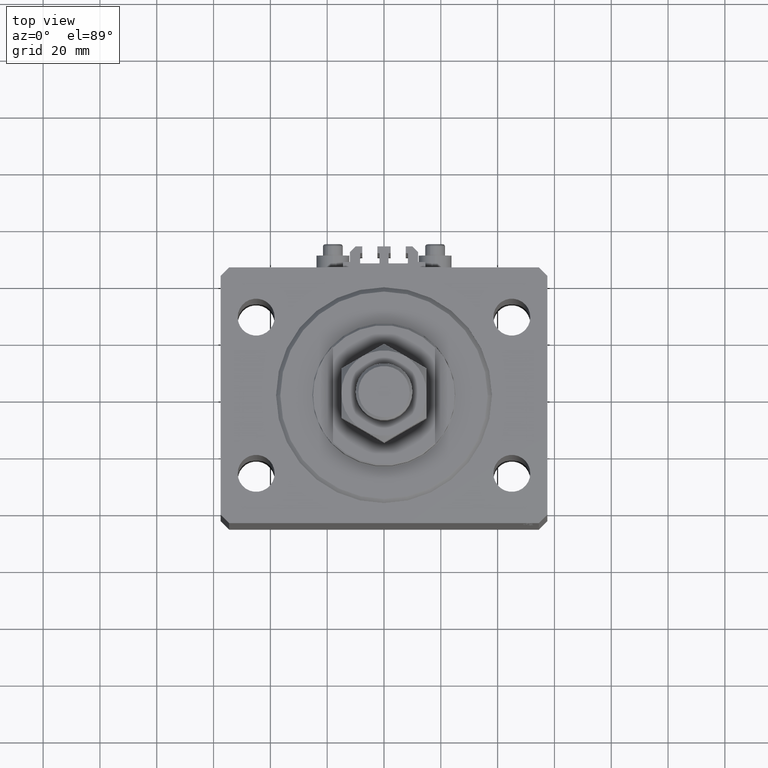
[diagram: clean part render]
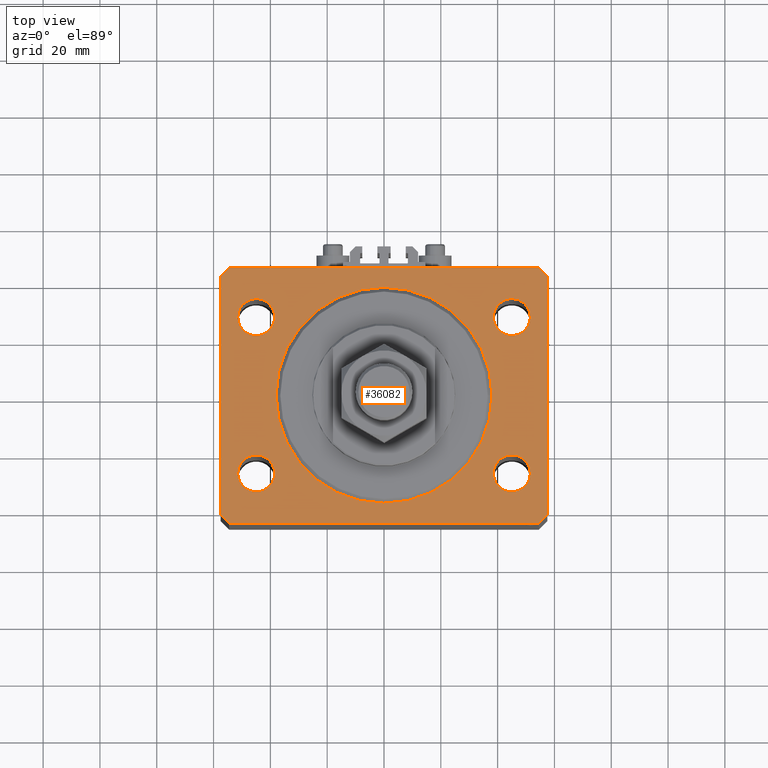
[diagram: same view with one face highlighted and labeled with its STEP entity id]
A machine part, top view. The second image highlights one B-rep face of the part: STEP entity #36082.
In plain terms, the highlighted planar face has unit normal (0, 0, 1).
Its self-contained STEP definition (entity closure, byte-faithful):
#294 = ORIENTED_EDGE ( 'NONE', *, *, #29644, .F. ) ;
#375 = DIRECTION ( 'NONE',  ( 0.000000000000000000, 0.000000000000000000, 1.000000000000000000 ) ) ;
#491 = DIRECTION ( 'NONE',  ( 0.000000000000000000, 0.000000000000000000, 1.000000000000000000 ) ) ;
#844 = FACE_BOUND ( 'NONE', #33536, .T. ) ;
#1034 = DIRECTION ( 'NONE',  ( -0.7071067811865369146, 0.7071067811865581199, 0.000000000000000000 ) ) ;
#1200 = AXIS2_PLACEMENT_3D ( 'NONE', #19736, #31136, #12305 ) ;
#1409 = AXIS2_PLACEMENT_3D ( 'NONE', #45824, #12414, #4514 ) ;
#1538 = ORIENTED_EDGE ( 'NONE', *, *, #47266, .F. ) ;
#2113 = ORIENTED_EDGE ( 'NONE', *, *, #37866, .F. ) ;
#2115 = AXIS2_PLACEMENT_3D ( 'NONE', #38949, #31062, #8780 ) ;
#2724 = VERTEX_POINT ( 'NONE', #45018 ) ;
#2745 = CARTESIAN_POINT ( 'NONE',  ( -44.99999999999998579, -27.50000000000000355, 0.000000000000000000 ) ) ;
#2760 = EDGE_CURVE ( 'NONE', #21957, #29262, #25051, .T. ) ;
#3078 = CARTESIAN_POINT ( 'NONE',  ( 54.50000000000059686, 45.00000000000002842, 0.000000000000000000 ) ) ;
#3464 = ORIENTED_EDGE ( 'NONE', *, *, #20918, .T. ) ;
#3721 = AXIS2_PLACEMENT_3D ( 'NONE', #9372, #38823, #16541 ) ;
#3882 = EDGE_CURVE ( 'NONE', #12818, #14894, #23705, .T. ) ;
#4233 = LINE ( 'NONE', #38868, #16277 ) ;
#4503 = EDGE_CURVE ( 'NONE', #13032, #11188, #44037, .T. ) ;
#4514 = DIRECTION ( 'NONE',  ( 1.000000000000000000, 0.000000000000000000, 0.000000000000000000 ) ) ;
#4580 = AXIS2_PLACEMENT_3D ( 'NONE', #22386, #6831, #21896 ) ;
#4654 = CARTESIAN_POINT ( 'NONE',  ( -45.00000000000000000, 27.49999999999999645, 0.000000000000000000 ) ) ;
#5240 = EDGE_CURVE ( 'NONE', #21312, #18673, #14841, .T. ) ;
#5655 = VERTEX_POINT ( 'NONE', #45108 ) ;
#5964 = VERTEX_POINT ( 'NONE', #39093 ) ;
#6179 = CIRCLE ( 'NONE', #4580, 6.499999999999999112 ) ;
#6587 = EDGE_CURVE ( 'NONE', #2724, #5655, #22864, .T. ) ;
#6831 = DIRECTION ( 'NONE',  ( 0.000000000000000000, 0.000000000000000000, 1.000000000000000000 ) ) ;
#7028 = VECTOR ( 'NONE', #26820, 1000.000000000000000 ) ;
#7212 = VERTEX_POINT ( 'NONE', #42557 ) ;
#7328 = ORIENTED_EDGE ( 'NONE', *, *, #46201, .T. ) ;
#7810 = FACE_BOUND ( 'NONE', #14256, .T. ) ;
#8531 = FACE_BOUND ( 'NONE', #21408, .T. ) ;
#8780 = DIRECTION ( 'NONE',  ( 1.000000000000000000, 0.000000000000000000, -0.000000000000000000 ) ) ;
#8844 = DIRECTION ( 'NONE',  ( 0.000000000000000000, 0.000000000000000000, 1.000000000000000000 ) ) ;
#9113 = VECTOR ( 'NONE', #1034, 1000.000000000000000 ) ;
#9372 = CARTESIAN_POINT ( 'NONE',  ( 44.99999999999998579, -27.50000000000000355, 0.000000000000000000 ) ) ;
#9490 = CARTESIAN_POINT ( 'NONE',  ( 38.49999999999998579, -27.50000000000000355, 0.000000000000000000 ) ) ;
#10303 = LINE ( 'NONE', #33801, #40290 ) ;
#10989 = CARTESIAN_POINT ( 'NONE',  ( -38.49999999999998579, -27.50000000000000355, 0.000000000000000000 ) ) ;
#11188 = VERTEX_POINT ( 'NONE', #34659 ) ;
#11431 = EDGE_CURVE ( 'NONE', #41669, #33326, #37158, .T. ) ;
#11894 = DIRECTION ( 'NONE',  ( 1.000000000000000000, 0.000000000000000000, 0.000000000000000000 ) ) ;
#12239 = CARTESIAN_POINT ( 'NONE',  ( -51.49999999999998579, -27.50000000000000355, 0.000000000000000000 ) ) ;
#12305 = DIRECTION ( 'NONE',  ( 1.000000000000000000, 0.000000000000000000, 0.000000000000000000 ) ) ;
#12414 = DIRECTION ( 'NONE',  ( 0.000000000000000000, 0.000000000000000000, 1.000000000000000000 ) ) ;
#12784 = ORIENTED_EDGE ( 'NONE', *, *, #14827, .T. ) ;
#12818 = VERTEX_POINT ( 'NONE', #38826 ) ;
#13032 = VERTEX_POINT ( 'NONE', #15213 ) ;
#14062 = VECTOR ( 'NONE', #23757, 1000.000000000000000 ) ;
#14256 = EDGE_LOOP ( 'NONE', ( #40149, #25828 ) ) ;
#14574 = CARTESIAN_POINT ( 'NONE',  ( 0.000000000000000000, 0.000000000000000000, 0.000000000000000000 ) ) ;
#14803 = VECTOR ( 'NONE', #20467, 1000.000000000000114 ) ;
#14827 = EDGE_CURVE ( 'NONE', #17445, #2724, #10303, .T. ) ;
#14841 = CIRCLE ( 'NONE', #18012, 38.00000000000000000 ) ;
#14894 = VERTEX_POINT ( 'NONE', #45396 ) ;
#14964 = VERTEX_POINT ( 'NONE', #12239 ) ;
#15213 = CARTESIAN_POINT ( 'NONE',  ( 38.50000000000000000, 27.49999999999999289, 0.000000000000000000 ) ) ;
#15456 = FACE_BOUND ( 'NONE', #43446, .T. ) ;
#15843 = CARTESIAN_POINT ( 'NONE',  ( 45.00000000000000000, 27.49999999999999289, 0.000000000000000000 ) ) ;
#15952 = FACE_OUTER_BOUND ( 'NONE', #24819, .T. ) ;
#16041 = CARTESIAN_POINT ( 'NONE',  ( 38.00000000000000000, 0.000000000000000000, 0.000000000000000000 ) ) ;
#16277 = VECTOR ( 'NONE', #42805, 1000.000000000000000 ) ;
#16534 = CIRCLE ( 'NONE', #48130, 6.499999999999999112 ) ;
#16541 = DIRECTION ( 'NONE',  ( 1.000000000000000000, 0.000000000000000000, 0.000000000000000000 ) ) ;
#17135 = DIRECTION ( 'NONE',  ( 0.000000000000000000, 0.000000000000000000, 1.000000000000000000 ) ) ;
#17175 = CIRCLE ( 'NONE', #3721, 6.499999999999999112 ) ;
#17445 = VERTEX_POINT ( 'NONE', #3078 ) ;
#18012 = AXIS2_PLACEMENT_3D ( 'NONE', #26627, #375, #18952 ) ;
#18673 = VERTEX_POINT ( 'NONE', #48864 ) ;
#18769 = LINE ( 'NONE', #30175, #20606 ) ;
#18952 = DIRECTION ( 'NONE',  ( 1.000000000000000000, 0.000000000000000000, 0.000000000000000000 ) ) ;
#19000 = AXIS2_PLACEMENT_3D ( 'NONE', #4654, #23460, #19005 ) ;
#19005 = DIRECTION ( 'NONE',  ( 1.000000000000000000, 0.000000000000000000, 0.000000000000000000 ) ) ;
#19358 = CARTESIAN_POINT ( 'NONE',  ( 57.50000000000055422, 41.99999999999997868, 0.000000000000000000 ) ) ;
#19715 = CARTESIAN_POINT ( 'NONE',  ( 54.50000000000000711, -44.99999999999998579, 0.000000000000000000 ) ) ;
#19736 = CARTESIAN_POINT ( 'NONE',  ( -45.00000000000000000, 27.49999999999999645, 0.000000000000000000 ) ) ;
#19854 = LINE ( 'NONE', #19358, #9113 ) ;
#19956 = LINE ( 'NONE', #19715, #45844 ) ;
#20467 = DIRECTION ( 'NONE',  ( 0.7071067811865491270, -0.7071067811865459074, 0.000000000000000000 ) ) ;
#20606 = VECTOR ( 'NONE', #25718, 1000.000000000000000 ) ;
#20918 = EDGE_CURVE ( 'NONE', #5655, #12818, #4233, .T. ) ;
#21312 = VERTEX_POINT ( 'NONE', #16041 ) ;
#21408 = EDGE_LOOP ( 'NONE', ( #43376, #1538 ) ) ;
#21757 = CARTESIAN_POINT ( 'NONE',  ( 57.50000000000055422, 41.99999999999997868, 0.000000000000000000 ) ) ;
#21896 = DIRECTION ( 'NONE',  ( 1.000000000000000000, 0.000000000000000000, 0.000000000000000000 ) ) ;
#21957 = VERTEX_POINT ( 'NONE', #9490 ) ;
#22386 = CARTESIAN_POINT ( 'NONE',  ( -44.99999999999998579, -27.50000000000000355, 0.000000000000000000 ) ) ;
#22773 = CIRCLE ( 'NONE', #1409, 6.499999999999999112 ) ;
#22864 = LINE ( 'NONE', #26573, #7028 ) ;
#23376 = FACE_BOUND ( 'NONE', #42149, .T. ) ;
#23460 = DIRECTION ( 'NONE',  ( 0.000000000000000000, 0.000000000000000000, 1.000000000000000000 ) ) ;
#23705 = LINE ( 'NONE', #45954, #14803 ) ;
#23757 = DIRECTION ( 'NONE',  ( 1.000000000000000000, 1.273191542001326317E-16, 0.000000000000000000 ) ) ;
#24149 = CIRCLE ( 'NONE', #1200, 6.499999999999999112 ) ;
#24819 = EDGE_LOOP ( 'NONE', ( #12784, #24907, #3464, #38522, #34695, #31066, #7328, #43248 ) ) ;
#24907 = ORIENTED_EDGE ( 'NONE', *, *, #6587, .T. ) ;
#25051 = CIRCLE ( 'NONE', #44008, 6.499999999999999112 ) ;
#25718 = DIRECTION ( 'NONE',  ( 6.443258625056715108E-15, 1.000000000000000000, 0.000000000000000000 ) ) ;
#25828 = ORIENTED_EDGE ( 'NONE', *, *, #4503, .F. ) ;
#26573 = CARTESIAN_POINT ( 'NONE',  ( -54.49999999999999289, 45.00000000000000000, 0.000000000000000000 ) ) ;
#26627 = CARTESIAN_POINT ( 'NONE',  ( 0.000000000000000000, 0.000000000000000000, 0.000000000000000000 ) ) ;
#26820 = DIRECTION ( 'NONE',  ( -0.7071067811865483499, -0.7071067811865466846, 0.000000000000000000 ) ) ;
#28905 = EDGE_CURVE ( 'NONE', #37537, #17445, #19854, .T. ) ;
#29262 = VERTEX_POINT ( 'NONE', #32166 ) ;
#29451 = DIRECTION ( 'NONE',  ( 0.000000000000000000, 0.000000000000000000, 1.000000000000000000 ) ) ;
#29644 = EDGE_CURVE ( 'NONE', #33326, #41669, #24149, .T. ) ;
#30175 = CARTESIAN_POINT ( 'NONE',  ( 57.50000000000000711, -41.99999999999998579, 0.000000000000000000 ) ) ;
#30564 = PLANE ( 'NONE',  #2115 ) ;
#31062 = DIRECTION ( 'NONE',  ( 0.000000000000000000, 0.000000000000000000, 1.000000000000000000 ) ) ;
#31066 = ORIENTED_EDGE ( 'NONE', *, *, #48777, .T. ) ;
#31136 = DIRECTION ( 'NONE',  ( 0.000000000000000000, 0.000000000000000000, 1.000000000000000000 ) ) ;
#32086 = CARTESIAN_POINT ( 'NONE',  ( 44.99999999999998579, -27.50000000000000355, 0.000000000000000000 ) ) ;
#32166 = CARTESIAN_POINT ( 'NONE',  ( 51.49999999999998579, -27.50000000000000355, 0.000000000000000000 ) ) ;
#33326 = VERTEX_POINT ( 'NONE', #35345 ) ;
#33536 = EDGE_LOOP ( 'NONE', ( #36807, #36248 ) ) ;
#33801 = CARTESIAN_POINT ( 'NONE',  ( 54.50000000000059686, 45.00000000000002842, 0.000000000000000000 ) ) ;
#34649 = CARTESIAN_POINT ( 'NONE',  ( -54.50000000000000711, -45.00000000000000000, 0.000000000000000000 ) ) ;
#34659 = CARTESIAN_POINT ( 'NONE',  ( 51.50000000000000000, 27.49999999999999289, 0.000000000000000000 ) ) ;
#34695 = ORIENTED_EDGE ( 'NONE', *, *, #39959, .T. ) ;
#34831 = DIRECTION ( 'NONE',  ( 0.7071067811865483499, 0.7071067811865466846, 0.000000000000000000 ) ) ;
#35345 = CARTESIAN_POINT ( 'NONE',  ( -51.50000000000000000, 27.49999999999999645, 0.000000000000000000 ) ) ;
#36082 = ADVANCED_FACE ( 'NONE', ( #8531, #844, #15456, #7810, #23376, #15952 ), #30564, .T. ) ;
#36248 = ORIENTED_EDGE ( 'NONE', *, *, #46771, .F. ) ;
#36273 = DIRECTION ( 'NONE',  ( 1.000000000000000000, 0.000000000000000000, 0.000000000000000000 ) ) ;
#36807 = ORIENTED_EDGE ( 'NONE', *, *, #38413, .F. ) ;
#37011 = DIRECTION ( 'NONE',  ( -1.000000000000000000, -2.546383084002638829E-16, 0.000000000000000000 ) ) ;
#37158 = CIRCLE ( 'NONE', #19000, 6.499999999999999112 ) ;
#37537 = VERTEX_POINT ( 'NONE', #21757 ) ;
#37866 = EDGE_CURVE ( 'NONE', #29262, #21957, #17175, .T. ) ;
#38358 = CARTESIAN_POINT ( 'NONE',  ( -38.50000000000000000, 27.49999999999999645, 0.000000000000000000 ) ) ;
#38396 = ORIENTED_EDGE ( 'NONE', *, *, #11431, .F. ) ;
#38413 = EDGE_CURVE ( 'NONE', #45508, #14964, #6179, .T. ) ;
#38522 = ORIENTED_EDGE ( 'NONE', *, *, #3882, .T. ) ;
#38823 = DIRECTION ( 'NONE',  ( 0.000000000000000000, 0.000000000000000000, 1.000000000000000000 ) ) ;
#38826 = CARTESIAN_POINT ( 'NONE',  ( -57.50000000000000711, -42.00000000000000711, 0.000000000000000000 ) ) ;
#38868 = CARTESIAN_POINT ( 'NONE',  ( -57.49999999999998579, 42.00000000000000711, 0.000000000000000000 ) ) ;
#38949 = CARTESIAN_POINT ( 'NONE',  ( 0.000000000000000000, 0.000000000000000000, 0.000000000000000000 ) ) ;
#39093 = CARTESIAN_POINT ( 'NONE',  ( 54.50000000000000711, -44.99999999999998579, 0.000000000000000000 ) ) ;
#39959 = EDGE_CURVE ( 'NONE', #14894, #5964, #46001, .T. ) ;
#40149 = ORIENTED_EDGE ( 'NONE', *, *, #40479, .F. ) ;
#40290 = VECTOR ( 'NONE', #37011, 1000.000000000000000 ) ;
#40479 = EDGE_CURVE ( 'NONE', #11188, #13032, #22773, .T. ) ;
#41074 = AXIS2_PLACEMENT_3D ( 'NONE', #14574, #29451, #44510 ) ;
#41471 = ORIENTED_EDGE ( 'NONE', *, *, #2760, .F. ) ;
#41669 = VERTEX_POINT ( 'NONE', #38358 ) ;
#42149 = EDGE_LOOP ( 'NONE', ( #38396, #294 ) ) ;
#42557 = CARTESIAN_POINT ( 'NONE',  ( 57.50000000000000711, -41.99999999999998579, 0.000000000000000000 ) ) ;
#42614 = CIRCLE ( 'NONE', #41074, 38.00000000000000000 ) ;
#42805 = DIRECTION ( 'NONE',  ( -2.478176394252581141E-16, -1.000000000000000000, 0.000000000000000000 ) ) ;
#43248 = ORIENTED_EDGE ( 'NONE', *, *, #28905, .T. ) ;
#43376 = ORIENTED_EDGE ( 'NONE', *, *, #5240, .F. ) ;
#43446 = EDGE_LOOP ( 'NONE', ( #2113, #41471 ) ) ;
#44008 = AXIS2_PLACEMENT_3D ( 'NONE', #32086, #8844, #36273 ) ;
#44037 = CIRCLE ( 'NONE', #47987, 6.499999999999999112 ) ;
#44510 = DIRECTION ( 'NONE',  ( 1.000000000000000000, 0.000000000000000000, 0.000000000000000000 ) ) ;
#45018 = CARTESIAN_POINT ( 'NONE',  ( -54.49999999999999289, 45.00000000000000000, 0.000000000000000000 ) ) ;
#45108 = CARTESIAN_POINT ( 'NONE',  ( -57.49999999999998579, 42.00000000000000711, 0.000000000000000000 ) ) ;
#45396 = CARTESIAN_POINT ( 'NONE',  ( -54.50000000000000711, -45.00000000000000000, 0.000000000000000000 ) ) ;
#45508 = VERTEX_POINT ( 'NONE', #10989 ) ;
#45824 = CARTESIAN_POINT ( 'NONE',  ( 45.00000000000000000, 27.49999999999999289, 0.000000000000000000 ) ) ;
#45844 = VECTOR ( 'NONE', #34831, 1000.000000000000000 ) ;
#45954 = CARTESIAN_POINT ( 'NONE',  ( -57.50000000000000711, -42.00000000000000711, 0.000000000000000000 ) ) ;
#46001 = LINE ( 'NONE', #34649, #14062 ) ;
#46201 = EDGE_CURVE ( 'NONE', #7212, #37537, #18769, .T. ) ;
#46771 = EDGE_CURVE ( 'NONE', #14964, #45508, #16534, .T. ) ;
#47266 = EDGE_CURVE ( 'NONE', #18673, #21312, #42614, .T. ) ;
#47987 = AXIS2_PLACEMENT_3D ( 'NONE', #15843, #491, #11894 ) ;
#48028 = DIRECTION ( 'NONE',  ( 1.000000000000000000, 0.000000000000000000, 0.000000000000000000 ) ) ;
#48130 = AXIS2_PLACEMENT_3D ( 'NONE', #2745, #17135, #48028 ) ;
#48777 = EDGE_CURVE ( 'NONE', #5964, #7212, #19956, .T. ) ;
#48864 = CARTESIAN_POINT ( 'NONE',  ( -38.00000000000000000, 4.653657836759941941E-15, 0.000000000000000000 ) ) ;